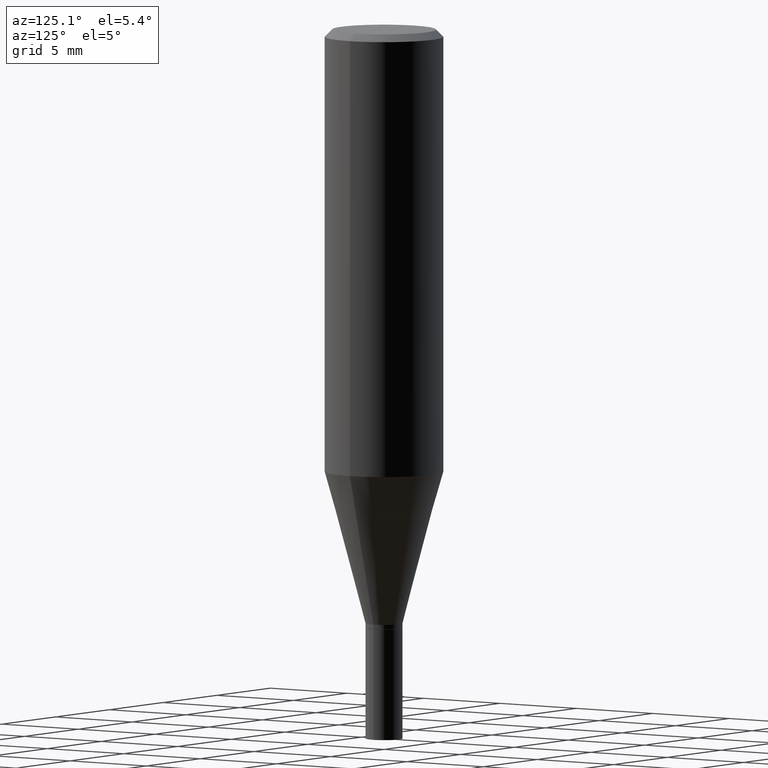
[diagram: clean part render]
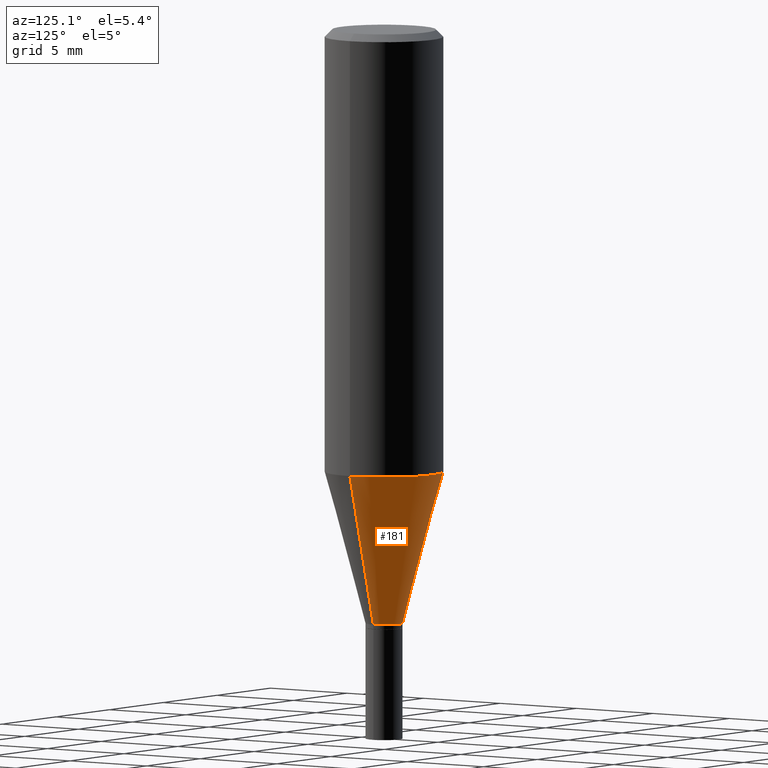
[diagram: same view with one face highlighted and labeled with its STEP entity id]
A machine part, auxiliary view. The second image highlights one B-rep face of the part: STEP entity #181.
In plain terms, the highlighted conical surface has half-angle 15 deg.
Its self-contained STEP definition (entity closure, byte-faithful):
#10 = VERTEX_POINT ( 'NONE', #16 ) ;
#16 = CARTESIAN_POINT ( 'NONE',  ( -0.03904999999999992505, -3.242497054963153757E-15, -1.256000000000000227 ) ) ;
#24 = LINE ( 'NONE', #135, #459 ) ;
#25 = VERTEX_POINT ( 'NONE', #409 ) ;
#64 = AXIS2_PLACEMENT_3D ( 'NONE', #324, #460, #248 ) ;
#68 = DIRECTION ( 'NONE',  ( -2.445468806185136597E-29, 3.491481338843145583E-15, 1.000000000000000000 ) ) ;
#87 = EDGE_CURVE ( 'NONE', #25, #229, #24, .T. ) ;
#98 = DIRECTION ( 'NONE',  ( 0.2588190451025213501, 1.565188264969621968E-15, 0.9659258262890682012 ) ) ;
#113 = ORIENTED_EDGE ( 'NONE', *, *, #281, .F. ) ;
#135 = CARTESIAN_POINT ( 'NONE',  ( 0.03904999999999992505, -4.657985254150639627E-15, -1.256000000000000227 ) ) ;
#168 = CARTESIAN_POINT ( 'NONE',  ( 0.1250000000000000278, -4.138209241064543323E-15, -0.9352302330894556315 ) ) ;
#180 = CARTESIAN_POINT ( 'NONE',  ( 3.071508820568532122E-29, -4.385300561586992092E-15, -1.256000000000000227 ) ) ;
#181 = ADVANCED_FACE ( 'NONE', ( #251 ), #199, .T. ) ;
#184 = EDGE_LOOP ( 'NONE', ( #372, #367, #113, #239 ) ) ;
#194 = DIRECTION ( 'NONE',  ( -2.445468806185136597E-29, 3.491481338843145583E-15, 1.000000000000000000 ) ) ;
#199 = CONICAL_SURFACE ( 'NONE', #319, 0.03904999999999992505, 0.2617993877991500740 ) ;
#213 = DIRECTION ( 'NONE',  ( 1.000000000000000000, -6.982962677686254878E-15, 0.000000000000000000 ) ) ;
#216 = CARTESIAN_POINT ( 'NONE',  ( -0.03904999999999992505, -4.107833623272672762E-15, -1.256000000000000227 ) ) ;
#218 = EDGE_CURVE ( 'NONE', #10, #362, #285, .T. ) ;
#229 = VERTEX_POINT ( 'NONE', #168 ) ;
#239 = ORIENTED_EDGE ( 'NONE', *, *, #87, .F. ) ;
#248 = DIRECTION ( 'NONE',  ( 1.000000000000000000, -6.982962677686266711E-15, 0.000000000000000000 ) ) ;
#251 = FACE_OUTER_BOUND ( 'NONE', #184, .T. ) ;
#267 = VECTOR ( 'NONE', #393, 39.37007874015747433 ) ;
#268 = CARTESIAN_POINT ( 'NONE',  ( -0.1250000000000000278, -2.377160486653634357E-15, -0.9352302330894556315 ) ) ;
#281 = EDGE_CURVE ( 'NONE', #229, #362, #438, .T. ) ;
#285 = LINE ( 'NONE', #216, #267 ) ;
#289 = CIRCLE ( 'NONE', #421, 0.03904999999999992505 ) ;
#319 = AXIS2_PLACEMENT_3D ( 'NONE', #432, #68, #213 ) ;
#324 = CARTESIAN_POINT ( 'NONE',  ( 2.287076361621518071E-29, -3.265338906353759984E-15, -0.9352302330894556315 ) ) ;
#336 = DIRECTION ( 'NONE',  ( 1.000000000000000000, -6.982962677686254878E-15, 0.000000000000000000 ) ) ;
#362 = VERTEX_POINT ( 'NONE', #268 ) ;
#367 = ORIENTED_EDGE ( 'NONE', *, *, #218, .T. ) ;
#371 = EDGE_CURVE ( 'NONE', #25, #10, #289, .T. ) ;
#372 = ORIENTED_EDGE ( 'NONE', *, *, #371, .T. ) ;
#393 = DIRECTION ( 'NONE',  ( -0.2588190451025213501, 5.211531920934551042E-15, 0.9659258262890682012 ) ) ;
#409 = CARTESIAN_POINT ( 'NONE',  ( 0.03904999999999992505, -4.657985254150639627E-15, -1.256000000000000227 ) ) ;
#421 = AXIS2_PLACEMENT_3D ( 'NONE', #180, #194, #336 ) ;
#432 = CARTESIAN_POINT ( 'NONE',  ( 3.071508820568532122E-29, -4.385300561586992092E-15, -1.256000000000000227 ) ) ;
#438 = CIRCLE ( 'NONE', #64, 0.1250000000000000000 ) ;
#459 = VECTOR ( 'NONE', #98, 39.37007874015747433 ) ;
#460 = DIRECTION ( 'NONE',  ( -2.445468806185136597E-29, 3.491481338843145583E-15, 1.000000000000000000 ) ) ;